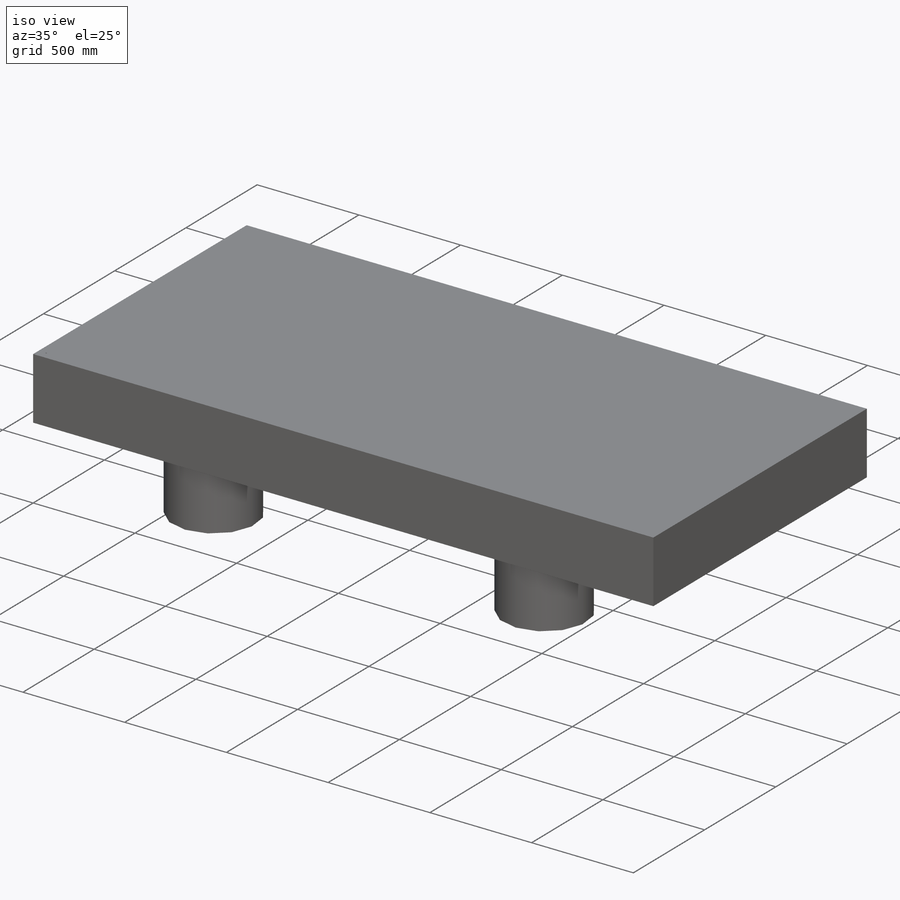
[diagram: iso view]
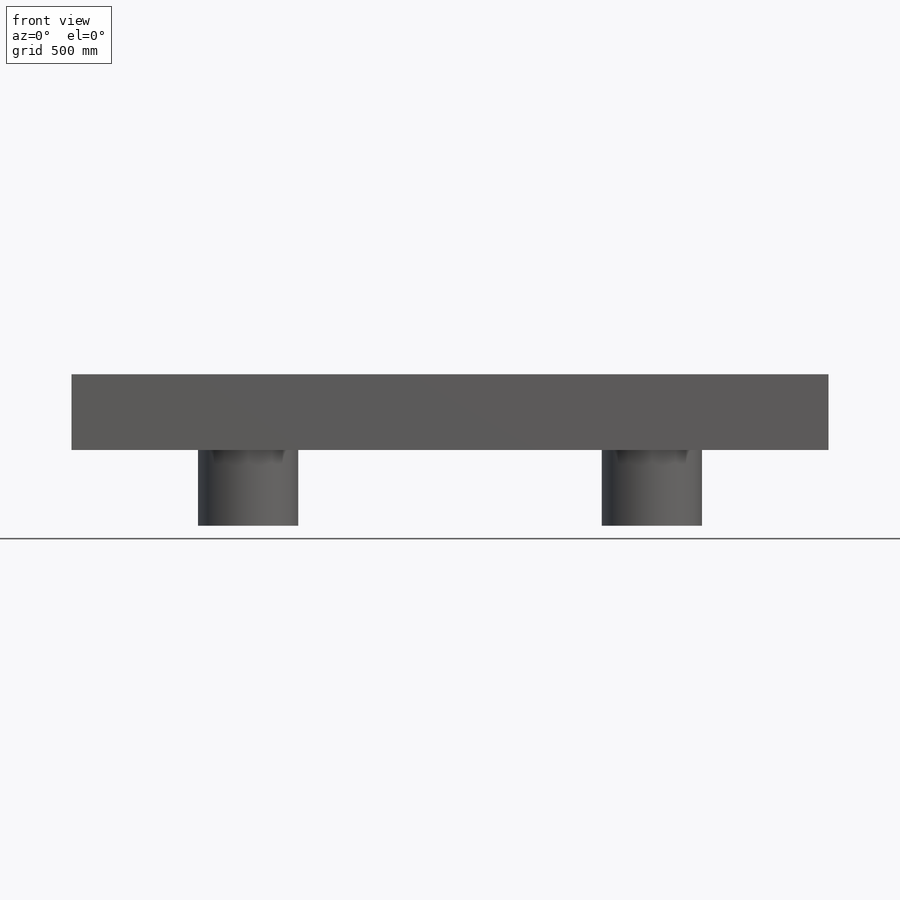
[diagram: front view]
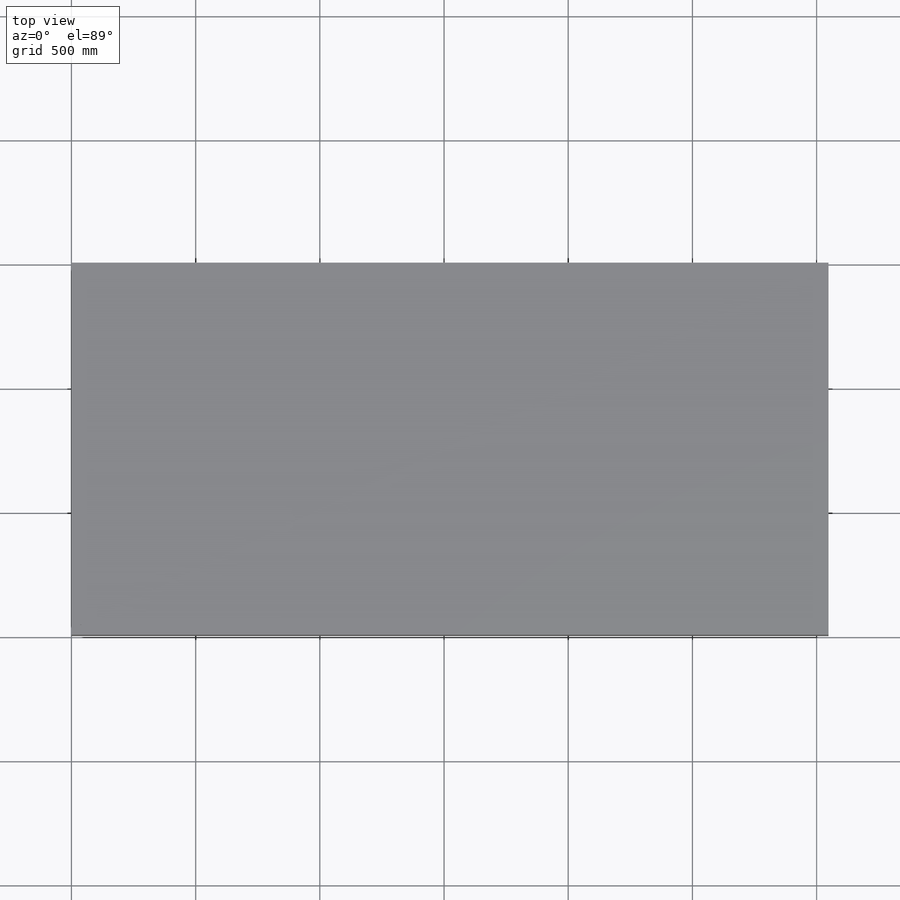
[diagram: top view]
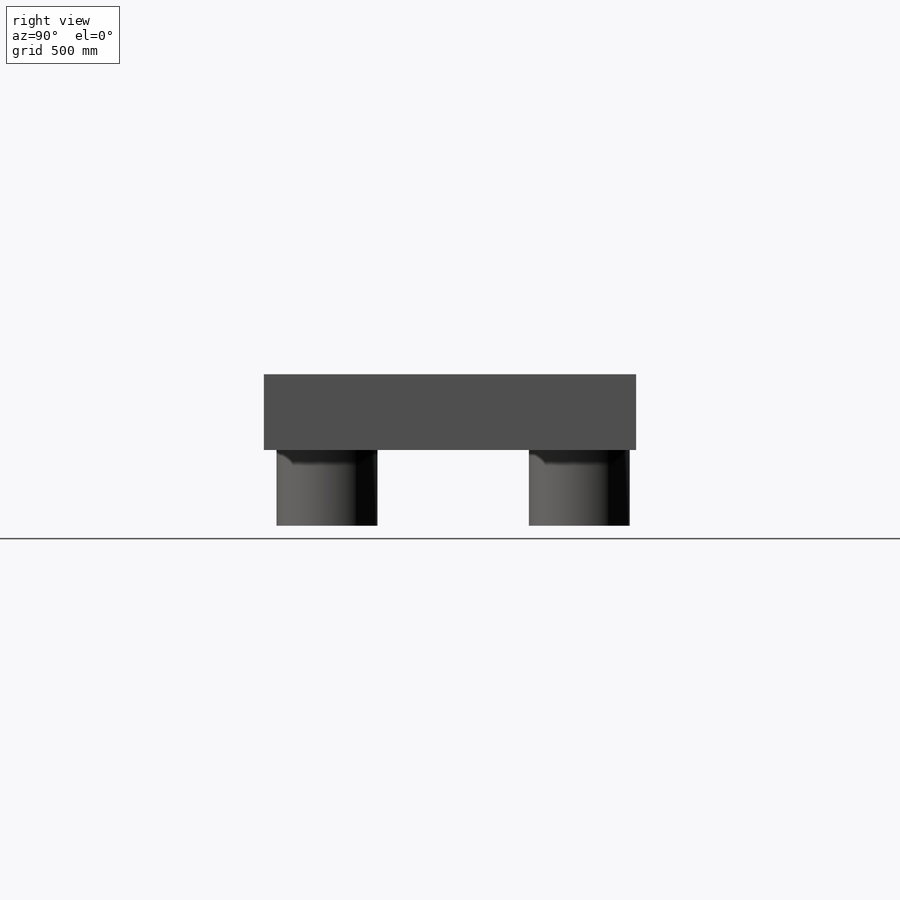
[diagram: right view]
SOLIDWORKS PART (.sldprt)
format: sldprt  version: not decoded by parser v0  size: 10,616,832 bytes
history: native  units: mm
features: sketch x3, extrude x2, material x1, cut_extrude x1, pattern_linear x1 (+11 scaffold rows collapsed)
feature tree (19):
  scaffold x11  (default folders/planes/origin — collapsed)
  material  "Material <not specified>"
  sketch  "Sketch1"  dims[D1=3048.0mm D2=1498.6mm]
  extrude  "Boss-Extrude1"  Depth=304.8mm
  sketch  "Sketch2"  dims[D1=~32.348133mm]
  extrude  "Boss-Extrude2"  Depth=304.8mm
  sketch  "Sketch3"  dims[D1=38.1mm D2=38.1mm]
  cut_extrude  "Cut-Extrude1"  Depth=25.4mm
  pattern_linear  "LPattern1"  Count1=57 Count2=118 Spacing1=25.4mm Spacing2=25.4mm
decode coverage: 7 of 7 modeling features carry decoded parameters
note: ~ marks probable driven/reference dimensions
note: suppression state not decoded; provenance and decode notes live in map.json
